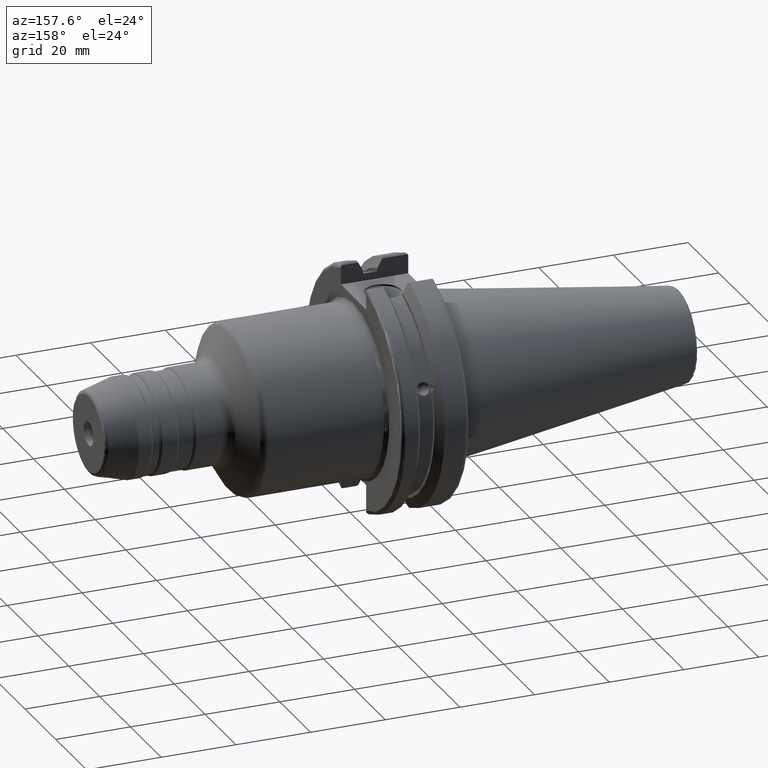
[diagram: clean part render]
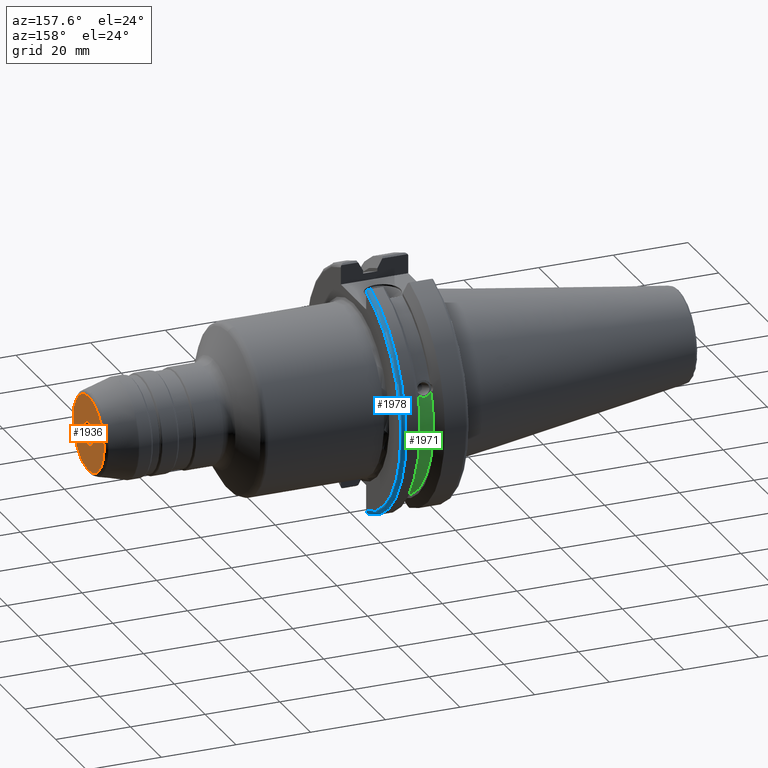
[diagram: same view with three faces highlighted in distinct colors, each labeled with its STEP entity id]
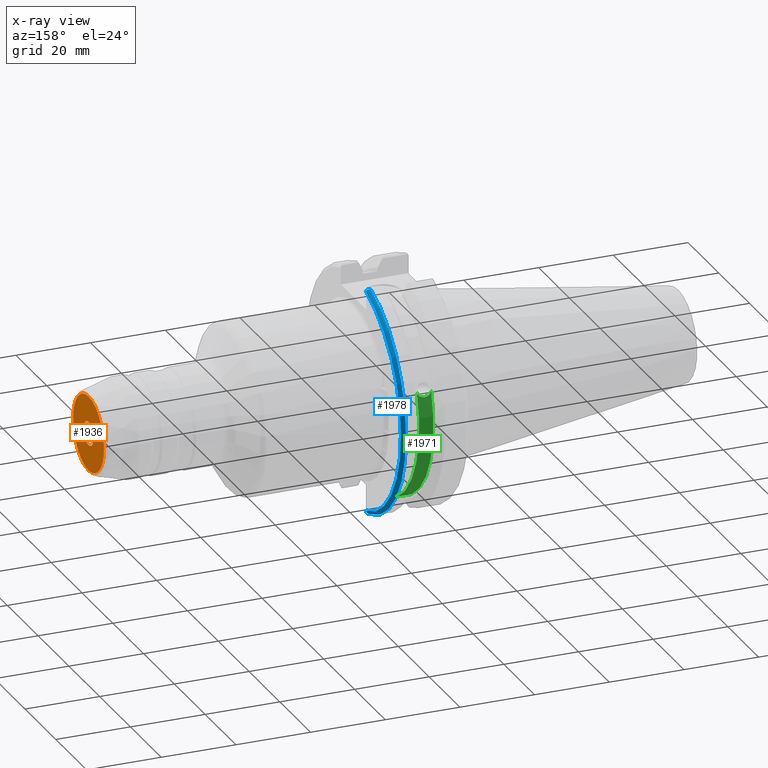
[diagram: x-ray of the same camera — body ghosted, the three highlighted faces saturated]
A machine part, auxiliary view with three faces highlighted in distinct colors.
The next image is the same camera in x-ray (body ghosted, the three faces saturated) — at least one of them is partly hidden behind the body in this view.
Their STEP definitions:

[orange] entity #1936 — the highlighted planar face has unit normal (1, 0, 0).
#51=FACE_BOUND('',#527,.T.);
#66=PLANE('',#2134);
#414=FACE_OUTER_BOUND('',#526,.T.);
#526=EDGE_LOOP('',(#1426));
#527=EDGE_LOOP('',(#1427));
#689=CIRCLE('',#2132,10.032673012021);
#691=CIRCLE('',#2135,3.175);
#816=VERTEX_POINT('',#3106);
#817=VERTEX_POINT('',#3110);
#1043=EDGE_CURVE('',#816,#816,#689,.T.);
#1045=EDGE_CURVE('',#817,#817,#691,.T.);
#1426=ORIENTED_EDGE('',*,*,#1043,.F.);
#1427=ORIENTED_EDGE('',*,*,#1045,.F.);
#1936=ADVANCED_FACE('',(#414,#51),#66,.T.);
#2132=AXIS2_PLACEMENT_3D('',#3107,#2499,#2500);
#2134=AXIS2_PLACEMENT_3D('',#3109,#2503,#2504);
#2135=AXIS2_PLACEMENT_3D('',#3111,#2505,#2506);
#2499=DIRECTION('center_axis',(-1.,0.,0.));
#2500=DIRECTION('ref_axis',(0.,-1.,1.83697019872103E-16));
#2503=DIRECTION('center_axis',(1.,0.,0.));
#2504=DIRECTION('ref_axis',(0.,0.,-1.));
#2505=DIRECTION('center_axis',(1.,0.,0.));
#2506=DIRECTION('ref_axis',(0.,0.,-1.));
#3106=CARTESIAN_POINT('',(90.,-1.22864808910636E-15,10.032673012021));
#3107=CARTESIAN_POINT('Origin',(90.,0.,0.));
#3109=CARTESIAN_POINT('Origin',(90.,3.175,0.));
#3110=CARTESIAN_POINT('',(90.,-3.175,-3.88825358729285E-16));
#3111=CARTESIAN_POINT('Origin',(90.,0.,0.));

[blue] entity #1978 — the highlighted toroidal blend (fillet) surface has major radius 30.75 mm and minor (blend) radius 1 mm.
#124=B_SPLINE_CURVE_WITH_KNOTS('',3,(#3617,#3618,#3619,#3620,#3621,#3622),
 .UNSPECIFIED.,.F.,.F.,(4,2,4),(0.0977210450333157,0.111963554372601,0.150804064902975),
 .UNSPECIFIED.);
#125=B_SPLINE_CURVE_WITH_KNOTS('',3,(#3626,#3627,#3628,#3629,#3630,#3631),
 .UNSPECIFIED.,.F.,.F.,(4,2,4),(0.452741154494498,0.491581665024871,0.505824174364157),
 .UNSPECIFIED.);
#126=B_SPLINE_CURVE_WITH_KNOTS('',3,(#3633,#3634,#3635,#3636,#3637,#3638,
#3639,#3640),.UNSPECIFIED.,.F.,.F.,(4,2,2,4),(-0.104180282751876,-0.0729784742461443,
-0.0343524753874979,0.),.UNSPECIFIED.);
#127=B_SPLINE_CURVE_WITH_KNOTS('',3,(#3643,#3644,#3645,#3646,#3647,#3648,
#3649,#3650),.UNSPECIFIED.,.F.,.F.,(4,2,2,4),(0.,0.0343524753874976,0.0729784742461442,
0.104180282751876),.UNSPECIFIED.);
#456=FACE_OUTER_BOUND('',#577,.T.);
#577=EDGE_LOOP('',(#1643,#1644,#1645,#1646,#1647,#1648));
#732=CIRCLE('',#2236,30.75);
#733=CIRCLE('',#2237,31.75);
#904=VERTEX_POINT('',#3615);
#905=VERTEX_POINT('',#3616);
#906=VERTEX_POINT('',#3623);
#907=VERTEX_POINT('',#3625);
#908=VERTEX_POINT('',#3632);
#909=VERTEX_POINT('',#3641);
#1169=EDGE_CURVE('',#904,#905,#124,.T.);
#1170=EDGE_CURVE('',#905,#906,#732,.T.);
#1171=EDGE_CURVE('',#906,#907,#125,.T.);
#1172=EDGE_CURVE('',#907,#908,#126,.T.);
#1173=EDGE_CURVE('',#908,#909,#733,.T.);
#1174=EDGE_CURVE('',#909,#904,#127,.T.);
#1643=ORIENTED_EDGE('',*,*,#1169,.T.);
#1644=ORIENTED_EDGE('',*,*,#1170,.T.);
#1645=ORIENTED_EDGE('',*,*,#1171,.T.);
#1646=ORIENTED_EDGE('',*,*,#1172,.T.);
#1647=ORIENTED_EDGE('',*,*,#1173,.T.);
#1648=ORIENTED_EDGE('',*,*,#1174,.T.);
#1905=TOROIDAL_SURFACE('',#2235,30.75,1.);
#1978=ADVANCED_FACE('',(#456),#1905,.T.);
#2235=AXIS2_PLACEMENT_3D('',#3614,#2740,#2741);
#2236=AXIS2_PLACEMENT_3D('',#3624,#2742,#2743);
#2237=AXIS2_PLACEMENT_3D('',#3642,#2744,#2745);
#2740=DIRECTION('center_axis',(1.,0.,0.));
#2741=DIRECTION('ref_axis',(0.,0.,-1.));
#2742=DIRECTION('center_axis',(-1.,0.,0.));
#2743=DIRECTION('ref_axis',(0.,1.,-6.12323399573677E-17));
#2744=DIRECTION('center_axis',(1.,0.,0.));
#2745=DIRECTION('ref_axis',(0.,1.,-6.12323399573676E-17));
#3614=CARTESIAN_POINT('Origin',(18.05,0.,0.));
#3615=CARTESIAN_POINT('',(18.9058722749097,8.19,30.1755016258903));
#3616=CARTESIAN_POINT('',(19.05,8.19,29.6392712461019));
#3617=CARTESIAN_POINT('Ctrl Pts',(18.9058722749097,8.19,30.1755016258903));
#3618=CARTESIAN_POINT('Ctrl Pts',(18.9318163728133,8.19,30.131014531546));
#3619=CARTESIAN_POINT('Ctrl Pts',(18.9539643471756,8.19,30.0852355256475));
#3620=CARTESIAN_POINT('Ctrl Pts',(19.020485567083,8.19,29.9212724384851));
#3621=CARTESIAN_POINT('Ctrl Pts',(19.05,8.19,29.7687396145364));
#3622=CARTESIAN_POINT('Ctrl Pts',(19.05,8.19,29.6392712461019));
#3623=CARTESIAN_POINT('',(19.05,8.19,-29.6392712461019));
#3624=CARTESIAN_POINT('Origin',(19.05,0.,0.));
#3625=CARTESIAN_POINT('',(18.9058722749097,8.19,-30.1755016258903));
#3626=CARTESIAN_POINT('Ctrl Pts',(19.05,8.19,-29.6392712461019));
#3627=CARTESIAN_POINT('Ctrl Pts',(19.05,8.19,-29.7687396145364));
#3628=CARTESIAN_POINT('Ctrl Pts',(19.020485567083,8.19,-29.9212724384851));
#3629=CARTESIAN_POINT('Ctrl Pts',(18.9539643471756,8.19,-30.0852355256475));
#3630=CARTESIAN_POINT('Ctrl Pts',(18.9318163728133,8.19,-30.131014531546));
#3631=CARTESIAN_POINT('Ctrl Pts',(18.9058722749097,8.19,-30.1755016258903));
#3632=CARTESIAN_POINT('',(18.05,8.67204822802685,-30.5427254764662));
#3633=CARTESIAN_POINT('Ctrl Pts',(18.9058722749097,8.19,-30.1755016258903));
#3634=CARTESIAN_POINT('Ctrl Pts',(18.8574463042989,8.2703682833078,-30.2367261024977));
#3635=CARTESIAN_POINT('Ctrl Pts',(18.7926702662319,8.34909446036477,-30.2966996242308));
#3636=CARTESIAN_POINT('Ctrl Pts',(18.6396724190507,8.48862804755883,-30.4029961692546));
#3637=CARTESIAN_POINT('Ctrl Pts',(18.5184414294771,8.56482138642532,-30.4610401774263));
#3638=CARTESIAN_POINT('Ctrl Pts',(18.2983170433775,8.6471881193939,-30.5237870709558));
#3639=CARTESIAN_POINT('Ctrl Pts',(18.1645082512917,8.67204822802685,-30.5427254764662));
#3640=CARTESIAN_POINT('Ctrl Pts',(18.05,8.67204822802685,-30.5427254764662));
#3641=CARTESIAN_POINT('',(18.05,8.67204822802685,30.5427254764662));
#3642=CARTESIAN_POINT('Origin',(18.05,0.,0.));
#3643=CARTESIAN_POINT('Ctrl Pts',(18.05,8.67204822802686,30.5427254764662));
#3644=CARTESIAN_POINT('Ctrl Pts',(18.1645082512917,8.67204822802686,30.5427254764662));
#3645=CARTESIAN_POINT('Ctrl Pts',(18.2983170433775,8.6471881193939,30.5237870709558));
#3646=CARTESIAN_POINT('Ctrl Pts',(18.5184414294771,8.56482138642532,30.4610401774263));
#3647=CARTESIAN_POINT('Ctrl Pts',(18.6396724190507,8.48862804755883,30.4029961692546));
#3648=CARTESIAN_POINT('Ctrl Pts',(18.7926702662319,8.34909446036477,30.2966996242308));
#3649=CARTESIAN_POINT('Ctrl Pts',(18.8574463042989,8.2703682833078,30.2367261024977));
#3650=CARTESIAN_POINT('Ctrl Pts',(18.9058722749097,8.19,30.1755016258903));

[green] entity #1971 — the highlighted cylindrical surface (partial cylindrical patch) has radius 28.15 mm, axis along (1, 0, 0).
#120=B_SPLINE_CURVE_WITH_KNOTS('',3,(#3502,#3503,#3504,#3505,#3506,#3507,
#3508,#3509,#3510,#3511,#3512,#3513,#3514,#3515),.UNSPECIFIED.,.F.,.F.,
(4,2,2,2,2,2,4),(0.401639126382404,0.474814416953736,0.553950208498303,
0.63308600004287,0.712221791587438,0.791357583132005,0.864532873703335),
 .UNSPECIFIED.);
#163=CYLINDRICAL_SURFACE('',#2222,28.15);
#216=LINE('',#3591,#311);
#311=VECTOR('',#2712,10.);
#449=FACE_OUTER_BOUND('',#569,.T.);
#569=EDGE_LOOP('',(#1616,#1617,#1618,#1619));
#726=CIRCLE('',#2221,28.15);
#727=CIRCLE('',#2223,28.15);
#883=VERTEX_POINT('',#3499);
#884=VERTEX_POINT('',#3501);
#896=VERTEX_POINT('',#3585);
#897=VERTEX_POINT('',#3589);
#1141=EDGE_CURVE('',#884,#883,#120,.T.);
#1155=EDGE_CURVE('',#896,#884,#726,.T.);
#1157=EDGE_CURVE('',#897,#883,#727,.T.);
#1158=EDGE_CURVE('',#897,#896,#216,.T.);
#1616=ORIENTED_EDGE('',*,*,#1141,.T.);
#1617=ORIENTED_EDGE('',*,*,#1157,.F.);
#1618=ORIENTED_EDGE('',*,*,#1158,.T.);
#1619=ORIENTED_EDGE('',*,*,#1155,.T.);
#1971=ADVANCED_FACE('',(#449),#163,.T.);
#2221=AXIS2_PLACEMENT_3D('',#3586,#2705,#2706);
#2222=AXIS2_PLACEMENT_3D('',#3588,#2708,#2709);
#2223=AXIS2_PLACEMENT_3D('',#3590,#2710,#2711);
#2705=DIRECTION('center_axis',(1.,0.,0.));
#2706=DIRECTION('ref_axis',(0.,0.,-1.));
#2708=DIRECTION('center_axis',(1.,0.,0.));
#2709=DIRECTION('ref_axis',(0.,1.,0.));
#2710=DIRECTION('center_axis',(1.,0.,0.));
#2711=DIRECTION('ref_axis',(0.,0.,-1.));
#2712=DIRECTION('',(-1.,0.,0.));
#3499=CARTESIAN_POINT('',(13.091,26.734714844398,8.8134852464121));
#3501=CARTESIAN_POINT('',(9.261,26.734714844398,8.81348524641211));
#3502=CARTESIAN_POINT('Ctrl Pts',(9.261,26.734714844398,8.81348524641212));
#3503=CARTESIAN_POINT('Ctrl Pts',(9.36723057097183,26.8086519721597,8.58920529678291));
#3504=CARTESIAN_POINT('Ctrl Pts',(9.5187201377051,26.8729987454904,8.38416529997369));
#3505=CARTESIAN_POINT('Ctrl Pts',(9.87747062657411,26.9778908791383,8.04056861831091));
#3506=CARTESIAN_POINT('Ctrl Pts',(10.1135450112988,27.0233016799732,7.88512567185902));
#3507=CARTESIAN_POINT('Ctrl Pts',(10.6309125426388,27.0826966800569,7.6786444840004));
#3508=CARTESIAN_POINT('Ctrl Pts',(10.9122140281848,27.0968804077294,7.62768458768513));
#3509=CARTESIAN_POINT('Ctrl Pts',(11.4397859718152,27.0968804077294,7.62768458768513));
#3510=CARTESIAN_POINT('Ctrl Pts',(11.7210874573612,27.0826966800569,7.6786444840004));
#3511=CARTESIAN_POINT('Ctrl Pts',(12.2384549887012,27.0233016799732,7.88512567185903));
#3512=CARTESIAN_POINT('Ctrl Pts',(12.4745293734259,26.9778908791383,8.04056861831092));
#3513=CARTESIAN_POINT('Ctrl Pts',(12.8332798622949,26.8729987454904,8.38416529997369));
#3514=CARTESIAN_POINT('Ctrl Pts',(12.9847694290282,26.8086519721597,8.58920529678291));
#3515=CARTESIAN_POINT('Ctrl Pts',(13.091,26.734714844398,8.8134852464121));
#3585=CARTESIAN_POINT('',(9.261,8.19,-26.932255754021));
#3586=CARTESIAN_POINT('Origin',(9.261,0.,0.));
#3588=CARTESIAN_POINT('Origin',(11.176,0.,0.));
#3589=CARTESIAN_POINT('',(13.091,8.19,-26.932255754021));
#3590=CARTESIAN_POINT('Origin',(13.091,0.,0.));
#3591=CARTESIAN_POINT('',(11.176,8.19,-26.932255754021));